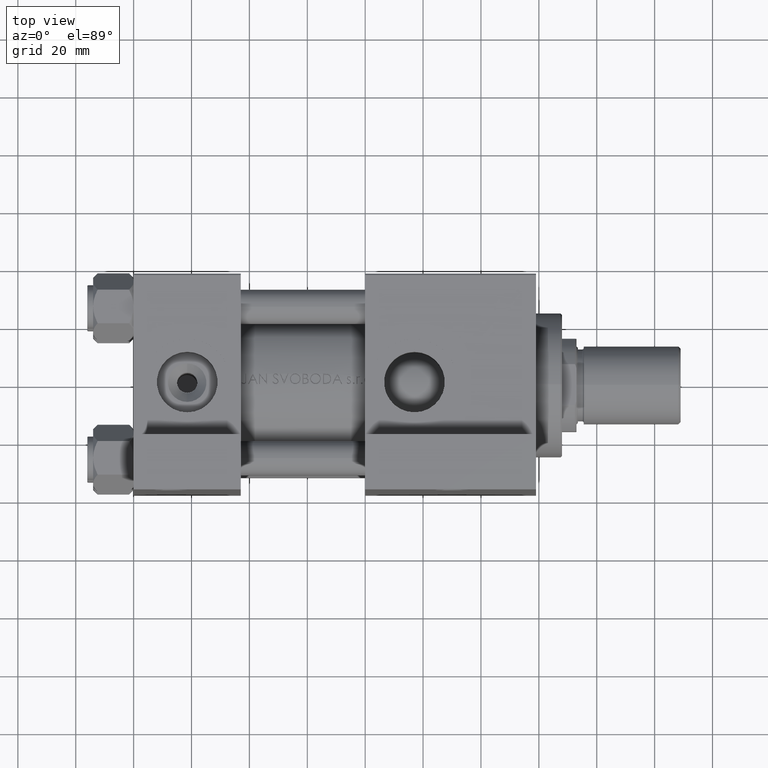
[diagram: clean part render]
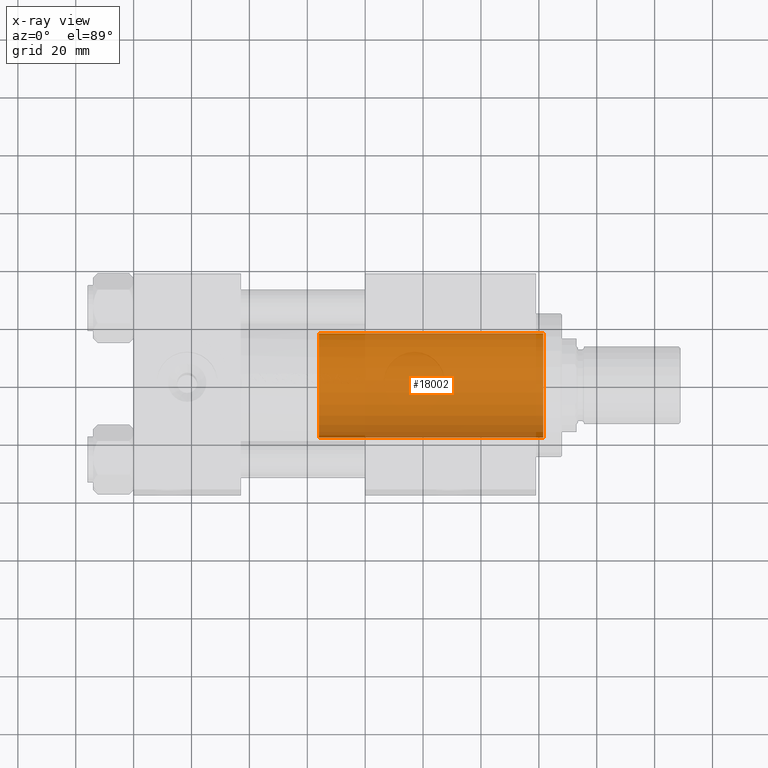
[diagram: x-ray — body ghosted, one internal face saturated and labeled with its STEP entity id]
A machine part, top view, then the same camera in x-ray: the body is ghosted and one INTERNAL B-rep face — a face not visible from any outside direction — is saturated and labeled: STEP entity #18002.
In plain terms, the highlighted cylindrical surface (partial cylindrical patch) has radius 18 mm, axis along (-1, 0, 0).
Its self-contained STEP definition (entity closure, byte-faithful):
#1089 = CYLINDRICAL_SURFACE ( 'NONE', #18786, 18.00000000000000000 ) ;
#2653 = AXIS2_PLACEMENT_3D ( 'NONE', #48393, #14106, #21550 ) ;
#2906 = CARTESIAN_POINT ( 'NONE',  ( 0.000000000000000000, 0.000000000000000000, 104.4999999999999858 ) ) ;
#3798 = VECTOR ( 'NONE', #32282, 1000.000000000000000 ) ;
#5210 = LINE ( 'NONE', #17387, #12896 ) ;
#6917 = ORIENTED_EDGE ( 'NONE', *, *, #27097, .T. ) ;
#7195 = VERTEX_POINT ( 'NONE', #15389 ) ;
#8823 = VERTEX_POINT ( 'NONE', #39579 ) ;
#9184 = DIRECTION ( 'NONE',  ( -0.000000000000000000, -0.000000000000000000, -1.000000000000000000 ) ) ;
#9586 = EDGE_LOOP ( 'NONE', ( #6917, #48781, #14707, #30076 ) ) ;
#12381 = AXIS2_PLACEMENT_3D ( 'NONE', #2906, #14336, #29727 ) ;
#12896 = VECTOR ( 'NONE', #9184, 1000.000000000000000 ) ;
#13894 = CARTESIAN_POINT ( 'NONE',  ( 18.00000000000000000, 2.204364238465235428E-15, 105.0000000000000000 ) ) ;
#14106 = DIRECTION ( 'NONE',  ( 0.000000000000000000, 0.000000000000000000, 1.000000000000000000 ) ) ;
#14336 = DIRECTION ( 'NONE',  ( 0.000000000000000000, 0.000000000000000000, -1.000000000000000000 ) ) ;
#14520 = CARTESIAN_POINT ( 'NONE',  ( 18.00000000000000000, 2.204364238465235428E-15, 104.4999999999999858 ) ) ;
#14707 = ORIENTED_EDGE ( 'NONE', *, *, #47474, .T. ) ;
#15389 = CARTESIAN_POINT ( 'NONE',  ( 18.00000000000000000, 2.204364238465235428E-15, 27.00000000000000000 ) ) ;
#16245 = CARTESIAN_POINT ( 'NONE',  ( 0.000000000000000000, 0.000000000000000000, 105.0000000000000000 ) ) ;
#17374 = LINE ( 'NONE', #13894, #3798 ) ;
#17387 = CARTESIAN_POINT ( 'NONE',  ( -18.00000000000000000, 0.000000000000000000, 105.0000000000000000 ) ) ;
#18002 = ADVANCED_FACE ( 'NONE', ( #19719 ), #1089, .T. ) ;
#18786 = AXIS2_PLACEMENT_3D ( 'NONE', #16245, #30903, #46061 ) ;
#19719 = FACE_OUTER_BOUND ( 'NONE', #9586, .T. ) ;
#21109 = CIRCLE ( 'NONE', #12381, 18.00000000000000000 ) ;
#21550 = DIRECTION ( 'NONE',  ( 1.000000000000000000, 0.000000000000000000, 0.000000000000000000 ) ) ;
#26605 = VERTEX_POINT ( 'NONE', #14520 ) ;
#27097 = EDGE_CURVE ( 'NONE', #39679, #26605, #21109, .T. ) ;
#27914 = CIRCLE ( 'NONE', #2653, 18.00000000000000000 ) ;
#29727 = DIRECTION ( 'NONE',  ( 1.000000000000000000, 0.000000000000000000, 0.000000000000000000 ) ) ;
#30076 = ORIENTED_EDGE ( 'NONE', *, *, #46158, .F. ) ;
#30903 = DIRECTION ( 'NONE',  ( -0.000000000000000000, -0.000000000000000000, -1.000000000000000000 ) ) ;
#31135 = EDGE_CURVE ( 'NONE', #26605, #7195, #17374, .T. ) ;
#32282 = DIRECTION ( 'NONE',  ( -0.000000000000000000, -0.000000000000000000, -1.000000000000000000 ) ) ;
#36174 = CARTESIAN_POINT ( 'NONE',  ( -18.00000000000000000, 0.000000000000000000, 104.4999999999999858 ) ) ;
#39579 = CARTESIAN_POINT ( 'NONE',  ( -18.00000000000000000, 0.000000000000000000, 27.00000000000000000 ) ) ;
#39679 = VERTEX_POINT ( 'NONE', #36174 ) ;
#46061 = DIRECTION ( 'NONE',  ( -1.000000000000000000, 0.000000000000000000, 0.000000000000000000 ) ) ;
#46158 = EDGE_CURVE ( 'NONE', #39679, #8823, #5210, .T. ) ;
#47474 = EDGE_CURVE ( 'NONE', #7195, #8823, #27914, .T. ) ;
#48393 = CARTESIAN_POINT ( 'NONE',  ( 0.000000000000000000, 0.000000000000000000, 27.00000000000000000 ) ) ;
#48781 = ORIENTED_EDGE ( 'NONE', *, *, #31135, .T. ) ;